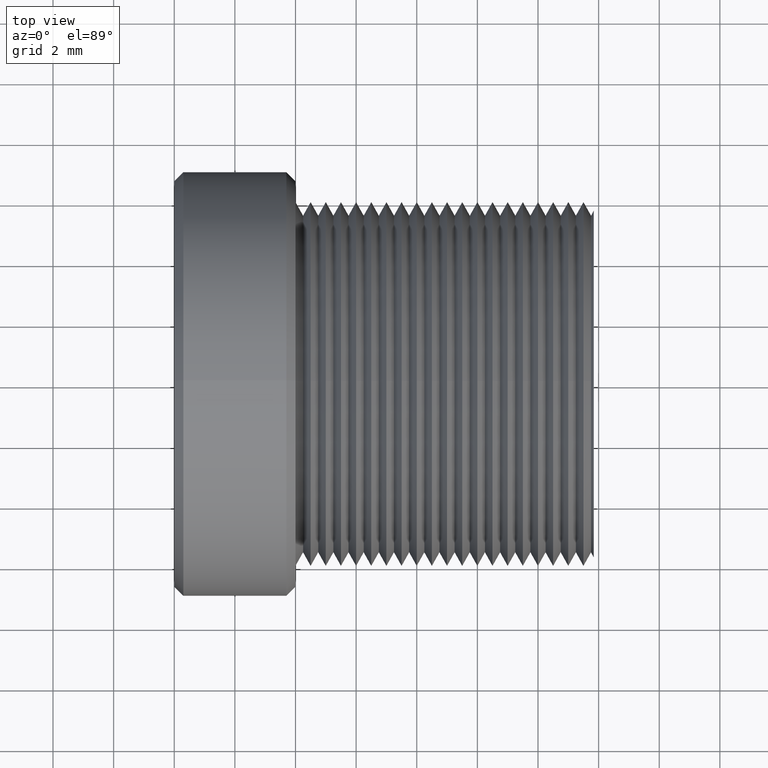
[diagram: clean part render]
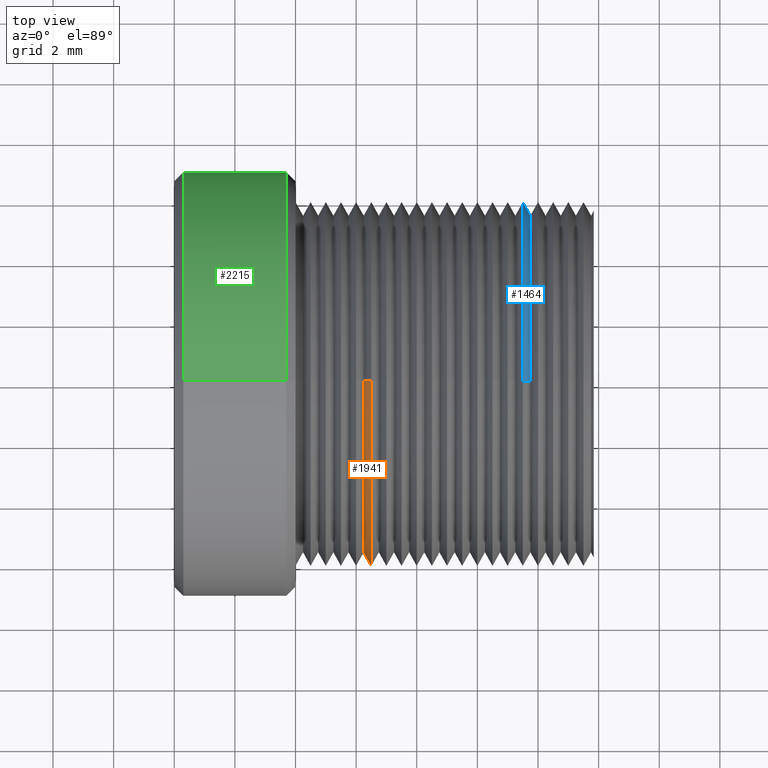
[diagram: same view with three faces highlighted in distinct colors, each labeled with its STEP entity id]
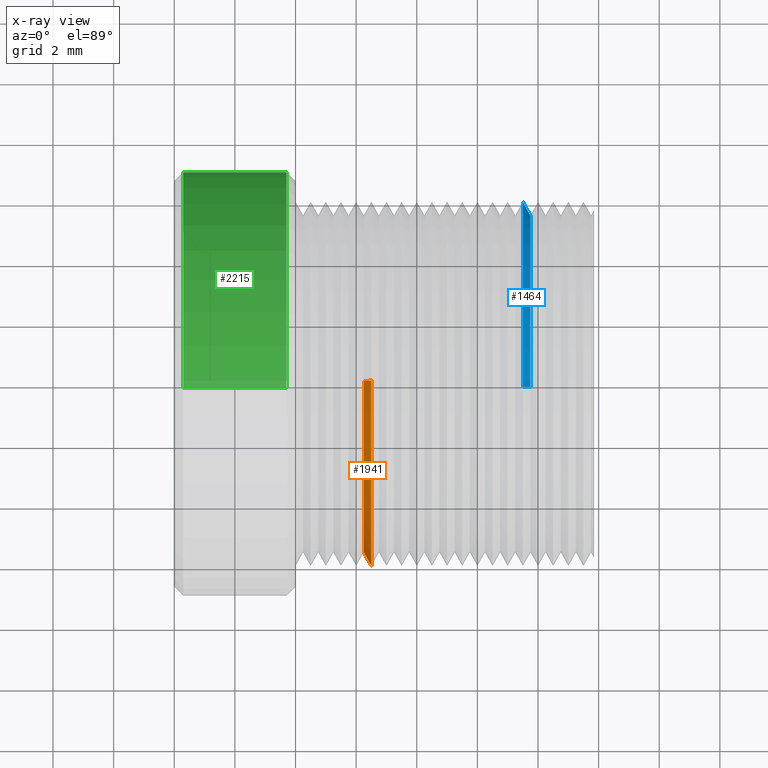
[diagram: x-ray of the same camera — body ghosted, the three highlighted faces saturated]
A machine part, top view with three faces highlighted in distinct colors.
The next image is the same camera in x-ray (body ghosted, the three faces saturated) — at least one of them is partly hidden behind the body in this view.
Their STEP definitions:

[orange] entity #1941 — the highlighted conical surface has half-angle 60 deg.
#13 = CONICAL_SURFACE ( 'NONE', #1894, 5.999999999999997335, 1.047197551196729082 ) ;
#106 = CARTESIAN_POINT ( 'NONE',  ( -1.500000000000055067, -0.001416594918479673797, 5.999999832771570674 ) ) ;
#108 = LINE ( 'NONE', #733, #334 ) ;
#113 = DIRECTION ( 'NONE',  ( 0.000000000000000000, 0.0002360991531231235868, -0.9999999721285944831 ) ) ;
#133 = ORIENTED_EDGE ( 'NONE', *, *, #610, .F. ) ;
#188 = CIRCLE ( 'NONE', #880, 5.999999999999997335 ) ;
#271 = EDGE_CURVE ( 'NONE', #1521, #2158, #188, .T. ) ;
#334 = VECTOR ( 'NONE', #1110, 1000.000000000000114 ) ;
#390 = DIRECTION ( 'NONE',  ( 0.000000000000000000, -0.0002360991531231235868, 0.9999999721285945942 ) ) ;
#458 = CIRCLE ( 'NONE', #1817, 5.566987298107897608 ) ;
#470 = EDGE_LOOP ( 'NONE', ( #977, #133, #2528, #1678 ) ) ;
#610 = EDGE_CURVE ( 'NONE', #1263, #885, #458, .T. ) ;
#670 = CARTESIAN_POINT ( 'NONE',  ( -1.749999999999920064, 0.001314360986715001900, -5.566987142948139677 ) ) ;
#733 = CARTESIAN_POINT ( 'NONE',  ( -1.500000000000055067, -0.001416594918479673797, 5.999999832771570674 ) ) ;
#761 = CARTESIAN_POINT ( 'NONE',  ( -1.500000000000055067, 2.220446049250315100E-13, 5.421010862427519705E-17 ) ) ;
#776 = DIRECTION ( 'NONE',  ( -1.000000000000000000, 0.000000000000000000, 0.000000000000000000 ) ) ;
#880 = AXIS2_PLACEMENT_3D ( 'NONE', #1157, #1749, #1966 ) ;
#885 = VERTEX_POINT ( 'NONE', #1900 ) ;
#977 = ORIENTED_EDGE ( 'NONE', *, *, #1426, .F. ) ;
#1110 = DIRECTION ( 'NONE',  ( 0.4999999999998861466, -0.0002044678644165265368, 0.8660253796471591992 ) ) ;
#1157 = CARTESIAN_POINT ( 'NONE',  ( -1.500000000000055067, 2.220446049250315100E-13, 5.421010862427519705E-17 ) ) ;
#1195 = LINE ( 'NONE', #1375, #1349 ) ;
#1263 = VERTEX_POINT ( 'NONE', #670 ) ;
#1349 = VECTOR ( 'NONE', #2402, 1000.000000000000114 ) ;
#1375 = CARTESIAN_POINT ( 'NONE',  ( -1.500000000000055067, 0.001416594918923763874, -5.999999832771570674 ) ) ;
#1406 = CARTESIAN_POINT ( 'NONE',  ( -1.749999999999920064, 2.220446049250315100E-13, 5.421010862427519705E-17 ) ) ;
#1426 = EDGE_CURVE ( 'NONE', #885, #2158, #108, .T. ) ;
#1521 = VERTEX_POINT ( 'NONE', #1775 ) ;
#1678 = ORIENTED_EDGE ( 'NONE', *, *, #271, .T. ) ;
#1749 = DIRECTION ( 'NONE',  ( -1.000000000000000000, 0.000000000000000000, 0.000000000000000000 ) ) ;
#1775 = CARTESIAN_POINT ( 'NONE',  ( -1.500000000000055067, 0.001416594918923763874, -5.999999832771570674 ) ) ;
#1817 = AXIS2_PLACEMENT_3D ( 'NONE', #1406, #776, #390 ) ;
#1894 = AXIS2_PLACEMENT_3D ( 'NONE', #761, #1940, #113 ) ;
#1900 = CARTESIAN_POINT ( 'NONE',  ( -1.749999999999920064, -0.001314360986270912040, 5.566987142948139677 ) ) ;
#1940 = DIRECTION ( 'NONE',  ( 1.000000000000000000, 0.000000000000000000, 0.000000000000000000 ) ) ;
#1941 = ADVANCED_FACE ( 'NONE', ( #2357 ), #13, .T. ) ;
#1966 = DIRECTION ( 'NONE',  ( 0.000000000000000000, -0.0002360991531231235868, 0.9999999721285944831 ) ) ;
#2158 = VERTEX_POINT ( 'NONE', #106 ) ;
#2357 = FACE_OUTER_BOUND ( 'NONE', #470, .T. ) ;
#2370 = EDGE_CURVE ( 'NONE', #1263, #1521, #1195, .T. ) ;
#2402 = DIRECTION ( 'NONE',  ( 0.4999999999998861466, 0.0002044678644166325447, -0.8660253796471591992 ) ) ;
#2528 = ORIENTED_EDGE ( 'NONE', *, *, #2370, .T. ) ;

[blue] entity #1464 — the highlighted conical surface has half-angle 60 deg.
#32 = ORIENTED_EDGE ( 'NONE', *, *, #68, .F. ) ;
#40 = CARTESIAN_POINT ( 'NONE',  ( 3.499999999999835243, -0.001416594918479673797, 5.999999832771570674 ) ) ;
#68 = EDGE_CURVE ( 'NONE', #1548, #1819, #1516, .T. ) ;
#78 = VERTEX_POINT ( 'NONE', #263 ) ;
#131 = EDGE_CURVE ( 'NONE', #1548, #78, #703, .T. ) ;
#145 = VERTEX_POINT ( 'NONE', #1473 ) ;
#171 = CARTESIAN_POINT ( 'NONE',  ( 3.750000000000144773, -0.001314360986270912040, 5.566987142948139677 ) ) ;
#205 = EDGE_CURVE ( 'NONE', #1819, #145, #274, .T. ) ;
#263 = CARTESIAN_POINT ( 'NONE',  ( 3.750000000000144773, 0.001314360986715001900, -5.566987142948139677 ) ) ;
#270 = DIRECTION ( 'NONE',  ( -0.5000000000005531131, -0.0002044678644165415530, 0.8660253796467741738 ) ) ;
#274 = CIRCLE ( 'NONE', #619, 5.999999999999997335 ) ;
#464 = AXIS2_PLACEMENT_3D ( 'NONE', #572, #774, #1158 ) ;
#572 = CARTESIAN_POINT ( 'NONE',  ( 3.750000000000144773, 2.220446049250315100E-13, 5.421010862427519705E-17 ) ) ;
#619 = AXIS2_PLACEMENT_3D ( 'NONE', #2468, #952, #1955 ) ;
#694 = EDGE_CURVE ( 'NONE', #78, #145, #1683, .T. ) ;
#703 = CIRCLE ( 'NONE', #2175, 5.566987298107897608 ) ;
#774 = DIRECTION ( 'NONE',  ( -1.000000000000000000, 0.000000000000000000, 0.000000000000000000 ) ) ;
#952 = DIRECTION ( 'NONE',  ( -1.000000000000000000, 0.000000000000000000, 0.000000000000000000 ) ) ;
#976 = FACE_OUTER_BOUND ( 'NONE', #1616, .T. ) ;
#1064 = DIRECTION ( 'NONE',  ( 0.000000000000000000, -0.0002360991531231235868, 0.9999999721285945942 ) ) ;
#1158 = DIRECTION ( 'NONE',  ( 0.000000000000000000, -0.0002360991531231235868, 0.9999999721285945942 ) ) ;
#1296 = DIRECTION ( 'NONE',  ( -1.000000000000000000, 0.000000000000000000, 0.000000000000000000 ) ) ;
#1378 = VECTOR ( 'NONE', #270, 1000.000000000000000 ) ;
#1464 = ADVANCED_FACE ( 'NONE', ( #976 ), #2112, .T. ) ;
#1465 = CARTESIAN_POINT ( 'NONE',  ( 3.750000000000144773, -0.001314360986270912040, 5.566987142948139677 ) ) ;
#1473 = CARTESIAN_POINT ( 'NONE',  ( 3.499999999999835243, 0.001416594918923763874, -5.999999832771570674 ) ) ;
#1506 = ORIENTED_EDGE ( 'NONE', *, *, #205, .F. ) ;
#1516 = LINE ( 'NONE', #1465, #1378 ) ;
#1541 = ORIENTED_EDGE ( 'NONE', *, *, #694, .T. ) ;
#1548 = VERTEX_POINT ( 'NONE', #171 ) ;
#1600 = ORIENTED_EDGE ( 'NONE', *, *, #131, .T. ) ;
#1616 = EDGE_LOOP ( 'NONE', ( #1600, #1541, #1506, #32 ) ) ;
#1683 = LINE ( 'NONE', #2259, #1860 ) ;
#1819 = VERTEX_POINT ( 'NONE', #40 ) ;
#1860 = VECTOR ( 'NONE', #2298, 1000.000000000000000 ) ;
#1897 = CARTESIAN_POINT ( 'NONE',  ( 3.750000000000144773, 2.220446049250315100E-13, 5.421010862427519705E-17 ) ) ;
#1955 = DIRECTION ( 'NONE',  ( 0.000000000000000000, -0.0002360991531231235868, 0.9999999721285944831 ) ) ;
#2112 = CONICAL_SURFACE ( 'NONE', #464, 5.566987298107897608, 1.047197551195959475 ) ;
#2175 = AXIS2_PLACEMENT_3D ( 'NONE', #1897, #1296, #1064 ) ;
#2259 = CARTESIAN_POINT ( 'NONE',  ( 3.750000000000144773, 0.001314360986715001900, -5.566987142948139677 ) ) ;
#2298 = DIRECTION ( 'NONE',  ( -0.5000000000005531131, 0.0002044678644166480488, -0.8660253796467741738 ) ) ;
#2468 = CARTESIAN_POINT ( 'NONE',  ( 3.499999999999835243, 2.220446049250315100E-13, 5.421010862427519705E-17 ) ) ;

[green] entity #2215 — the highlighted cylindrical surface (partial cylindrical patch) has radius 7 mm, axis along (-1, 0, 0).
#56 = DIRECTION ( 'NONE',  ( -1.000000000000000000, 0.000000000000000000, 0.000000000000000000 ) ) ;
#72 = AXIS2_PLACEMENT_3D ( 'NONE', #949, #1165, #1757 ) ;
#82 = CARTESIAN_POINT ( 'NONE',  ( -7.893366913450439171, 0.001652694072040714881, -6.999999804900060241 ) ) ;
#95 = EDGE_CURVE ( 'NONE', #444, #2078, #1802, .T. ) ;
#102 = LINE ( 'NONE', #82, #628 ) ;
#280 = CARTESIAN_POINT ( 'NONE',  ( -7.700000000000260414, -0.001652694071596630225, 6.999999804900060241 ) ) ;
#444 = VERTEX_POINT ( 'NONE', #1555 ) ;
#453 = CARTESIAN_POINT ( 'NONE',  ( -7.893366913450439171, 2.220446049250315100E-13, 5.421010862427519705E-17 ) ) ;
#582 = VECTOR ( 'NONE', #1102, 1000.000000000000000 ) ;
#628 = VECTOR ( 'NONE', #926, 1000.000000000000000 ) ;
#808 = VERTEX_POINT ( 'NONE', #280 ) ;
#842 = EDGE_CURVE ( 'NONE', #2078, #1954, #102, .T. ) ;
#926 = DIRECTION ( 'NONE',  ( -1.000000000000000000, 0.000000000000000000, 0.000000000000000000 ) ) ;
#947 = FACE_OUTER_BOUND ( 'NONE', #1038, .T. ) ;
#949 = CARTESIAN_POINT ( 'NONE',  ( -7.700000000000260414, 2.220446049250315100E-13, 5.421010862427519705E-17 ) ) ;
#957 = AXIS2_PLACEMENT_3D ( 'NONE', #1721, #56, #2291 ) ;
#983 = EDGE_CURVE ( 'NONE', #444, #808, #2499, .T. ) ;
#1038 = EDGE_LOOP ( 'NONE', ( #1439, #1206, #1809, #1755 ) ) ;
#1083 = EDGE_CURVE ( 'NONE', #808, #1954, #1266, .T. ) ;
#1102 = DIRECTION ( 'NONE',  ( -1.000000000000000000, 0.000000000000000000, 0.000000000000000000 ) ) ;
#1165 = DIRECTION ( 'NONE',  ( -1.000000000000000000, 0.000000000000000000, 0.000000000000000000 ) ) ;
#1206 = ORIENTED_EDGE ( 'NONE', *, *, #842, .T. ) ;
#1259 = DIRECTION ( 'NONE',  ( -1.000000000000000000, 0.000000000000000000, 0.000000000000000000 ) ) ;
#1266 = CIRCLE ( 'NONE', #72, 6.999999999999896083 ) ;
#1327 = CYLINDRICAL_SURFACE ( 'NONE', #1776, 6.999999999999896083 ) ;
#1424 = CARTESIAN_POINT ( 'NONE',  ( -4.300000000000195222, 0.001652694072040714881, -6.999999804900060241 ) ) ;
#1439 = ORIENTED_EDGE ( 'NONE', *, *, #95, .T. ) ;
#1519 = CARTESIAN_POINT ( 'NONE',  ( -7.893366913450439171, -0.001652694071596630225, 6.999999804900060241 ) ) ;
#1555 = CARTESIAN_POINT ( 'NONE',  ( -4.300000000000195222, -0.001652694071596630225, 6.999999804900060241 ) ) ;
#1721 = CARTESIAN_POINT ( 'NONE',  ( -4.300000000000195222, 2.220446049250315100E-13, 5.421010862427519705E-17 ) ) ;
#1747 = CARTESIAN_POINT ( 'NONE',  ( -7.700000000000260414, 0.001652694072040714881, -6.999999804900060241 ) ) ;
#1755 = ORIENTED_EDGE ( 'NONE', *, *, #983, .F. ) ;
#1757 = DIRECTION ( 'NONE',  ( 0.000000000000000000, -0.0002360991531231236139, 0.9999999721285945942 ) ) ;
#1776 = AXIS2_PLACEMENT_3D ( 'NONE', #453, #1259, #2074 ) ;
#1802 = CIRCLE ( 'NONE', #957, 6.999999999999896083 ) ;
#1809 = ORIENTED_EDGE ( 'NONE', *, *, #1083, .F. ) ;
#1954 = VERTEX_POINT ( 'NONE', #1747 ) ;
#2074 = DIRECTION ( 'NONE',  ( 0.000000000000000000, -0.0002360991531231236139, 0.9999999721285945942 ) ) ;
#2078 = VERTEX_POINT ( 'NONE', #1424 ) ;
#2215 = ADVANCED_FACE ( 'NONE', ( #947 ), #1327, .T. ) ;
#2291 = DIRECTION ( 'NONE',  ( 0.000000000000000000, -0.0002360991531231236139, 0.9999999721285945942 ) ) ;
#2499 = LINE ( 'NONE', #1519, #582 ) ;